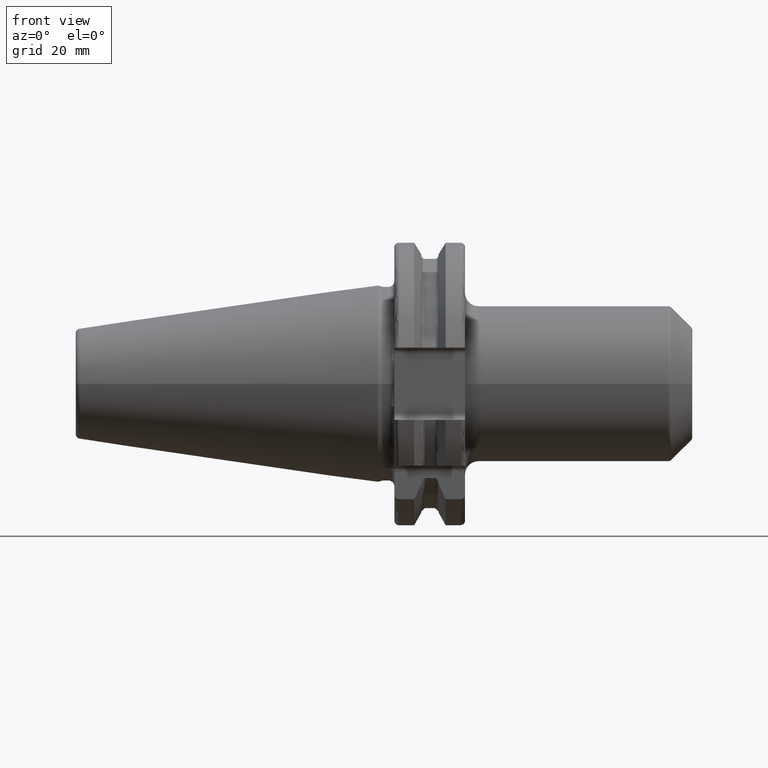
[diagram: clean part render]
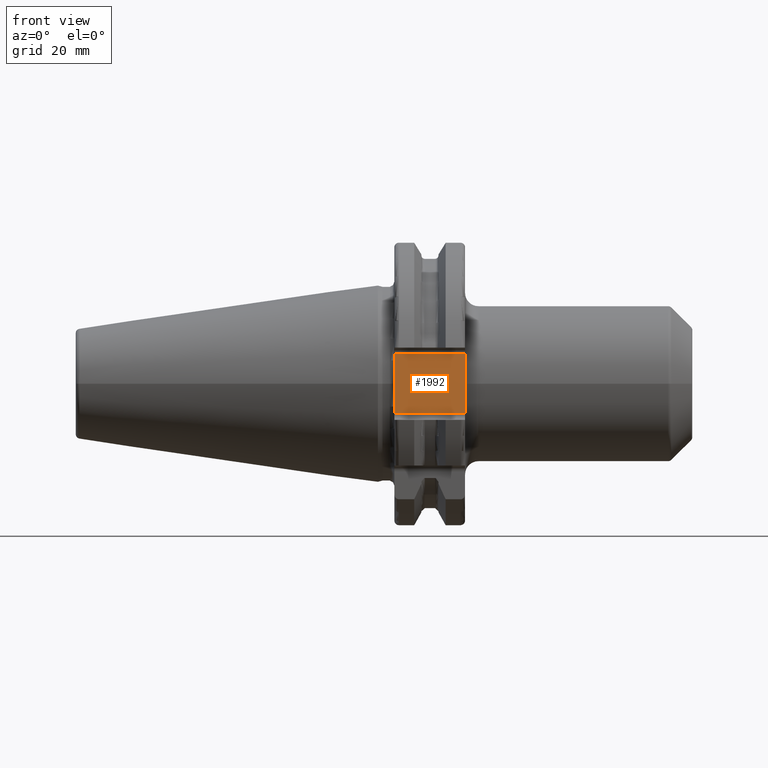
[diagram: same view with one face highlighted and labeled with its STEP entity id]
A machine part, front view. The second image highlights one B-rep face of the part: STEP entity #1992.
In plain terms, the highlighted planar face has unit normal (0, 1, 0).
Its self-contained STEP definition (entity closure, byte-faithful):
#161=DIRECTION('',(0.E0,0.E0,1.E0));
#162=VECTOR('',#161,1.35E1);
#163=CARTESIAN_POINT('',(3.2E0,-2.485E1,-6.75E0));
#164=LINE('',#163,#162);
#229=DIRECTION('',(0.E0,0.E0,1.E0));
#230=VECTOR('',#229,1.35E1);
#231=CARTESIAN_POINT('',(1.905E1,-2.485E1,-6.75E0));
#232=LINE('',#231,#230);
#292=DIRECTION('',(-1.E0,0.E0,0.E0));
#293=VECTOR('',#292,1.585E1);
#294=CARTESIAN_POINT('',(1.905E1,-2.485E1,-6.75E0));
#295=LINE('',#294,#293);
#296=DIRECTION('',(-1.E0,0.E0,0.E0));
#297=VECTOR('',#296,1.585E1);
#298=CARTESIAN_POINT('',(1.905E1,-2.485E1,6.75E0));
#299=LINE('',#298,#297);
#1499=CARTESIAN_POINT('',(1.905E1,-2.485E1,-6.75E0));
#1500=CARTESIAN_POINT('',(3.2E0,-2.485E1,-6.75E0));
#1501=VERTEX_POINT('',#1499);
#1502=VERTEX_POINT('',#1500);
#1511=CARTESIAN_POINT('',(1.905E1,-2.485E1,6.75E0));
#1512=CARTESIAN_POINT('',(3.2E0,-2.485E1,6.75E0));
#1513=VERTEX_POINT('',#1511);
#1514=VERTEX_POINT('',#1512);
#1980=CARTESIAN_POINT('',(1.905E1,-2.485E1,-8.1E0));
#1981=DIRECTION('',(0.E0,1.E0,0.E0));
#1982=DIRECTION('',(0.E0,0.E0,1.E0));
#1983=AXIS2_PLACEMENT_3D('',#1980,#1981,#1982);
#1984=PLANE('',#1983);
#1986=ORIENTED_EDGE('',*,*,#1985,.T.);
#1987=ORIENTED_EDGE('',*,*,#1806,.T.);
#1988=ORIENTED_EDGE('',*,*,#1974,.F.);
#1989=ORIENTED_EDGE('',*,*,#1870,.F.);
#1990=EDGE_LOOP('',(#1986,#1987,#1988,#1989));
#1991=FACE_OUTER_BOUND('',#1990,.F.);
#1992=ADVANCED_FACE('',(#1991),#1984,.F.);
#1806=EDGE_CURVE('',#1502,#1514,#164,.T.);
#1870=EDGE_CURVE('',#1501,#1513,#232,.T.);
#1974=EDGE_CURVE('',#1513,#1514,#299,.T.);
#1985=EDGE_CURVE('',#1501,#1502,#295,.T.);